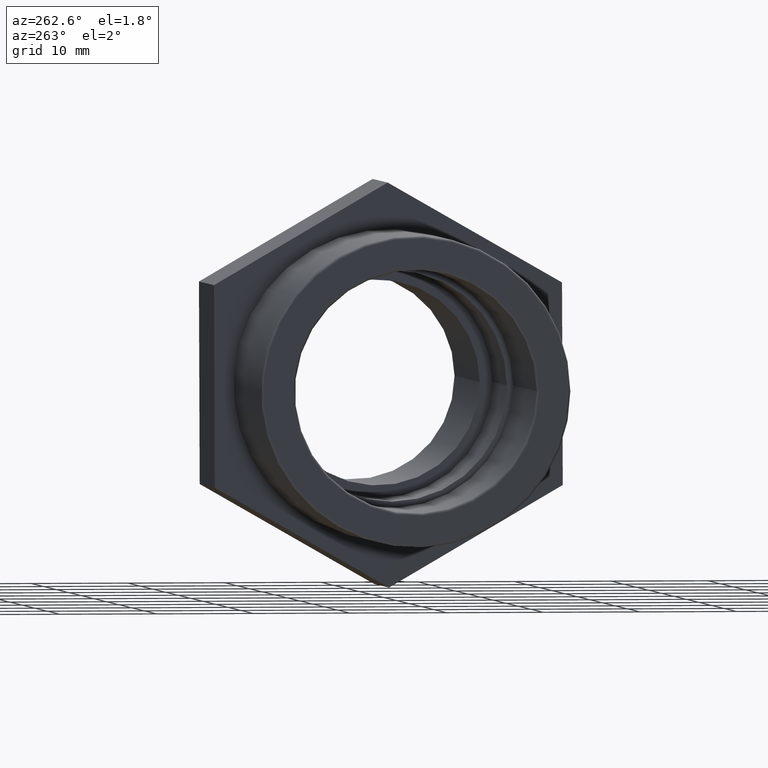
[diagram: clean part render]
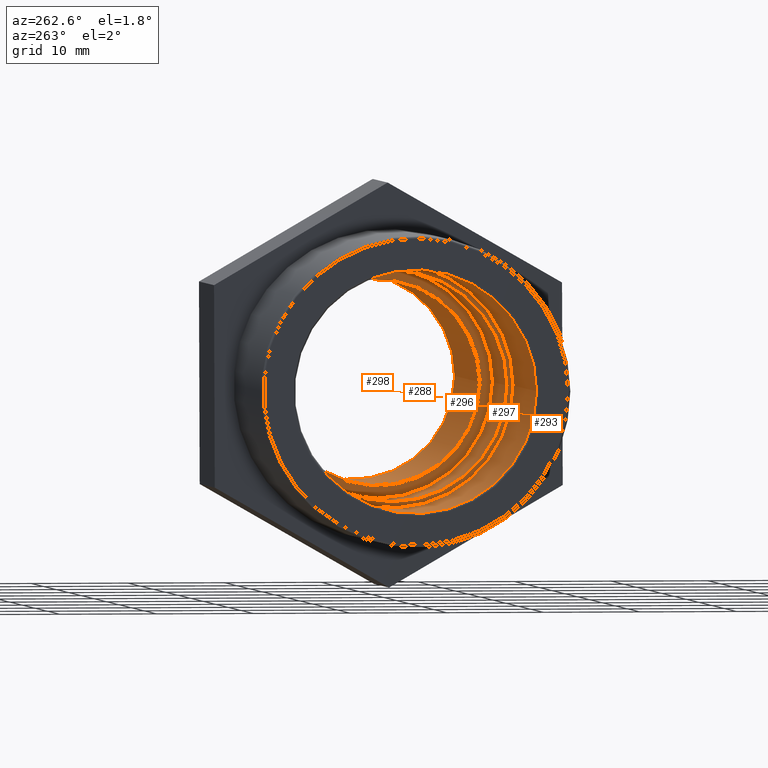
[diagram: same view with one multi-face feature highlighted, each face labeled with its STEP entity id]
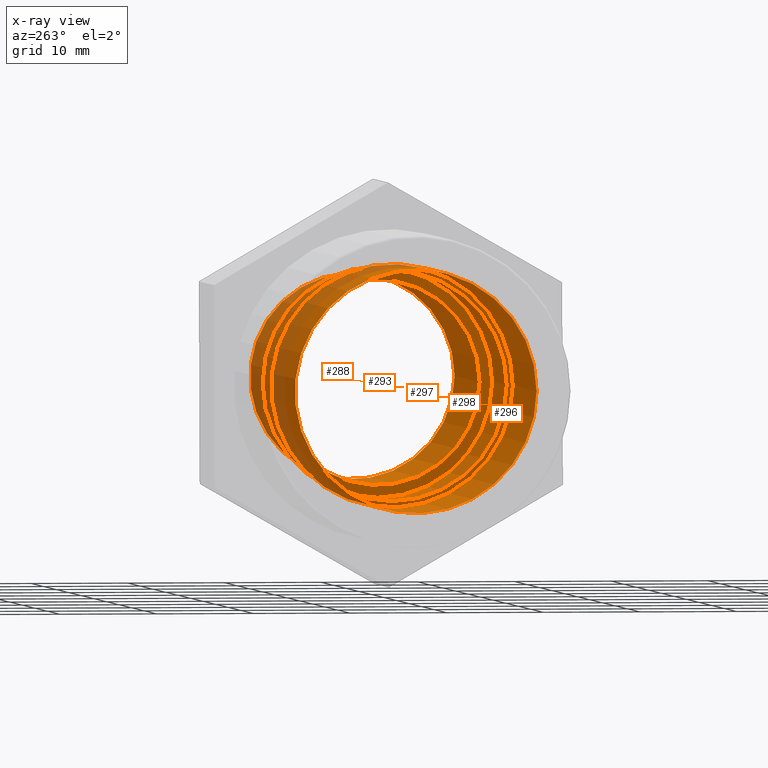
[diagram: x-ray of the same camera — body ghosted, the whole feature saturated]
A machine part, auxiliary view. The highlighted faces form ONE feature: a stepped (counterbored) hole: 3 coaxial cylindrical walls of radii 10.5764 -> 11.875 -> 12.5 mm joined by 2 annular planar shoulder face(s). The faces share edges in the B-rep.
The next image is the same camera in x-ray: the body ghosted and the whole hole feature saturated, so the bore chain is visible through the body.
Their STEP definitions:
[1] entity #293 (Cylinder):
#17=CYLINDRICAL_SURFACE('',#325,12.5);
#27=FACE_BOUND('',#95,.T.);
#42=CIRCLE('',#322,12.5);
#44=CIRCLE('',#326,12.5);
#66=FACE_OUTER_BOUND('',#94,.T.);
#94=EDGE_LOOP('',(#242));
#95=EDGE_LOOP('',(#243));
#165=VERTEX_POINT('',#485);
#167=VERTEX_POINT('',#491);
#197=EDGE_CURVE('',#165,#165,#42,.T.);
#199=EDGE_CURVE('',#167,#167,#44,.T.);
#242=ORIENTED_EDGE('',*,*,#199,.F.);
#243=ORIENTED_EDGE('',*,*,#197,.F.);
#293=ADVANCED_FACE('',(#66,#27),#17,.F.);
#322=AXIS2_PLACEMENT_3D('',#486,#396,#397);
#325=AXIS2_PLACEMENT_3D('',#490,#402,#403);
#326=AXIS2_PLACEMENT_3D('',#492,#404,#405);
#396=DIRECTION('center_axis',(1.,6.73555739531044E-16,0.));
#397=DIRECTION('ref_axis',(-6.74460487459783E-16,1.,6.12323399573677E-17));
#402=DIRECTION('center_axis',(-1.,-6.73555739531044E-16,0.));
#403=DIRECTION('ref_axis',(7.105427357601E-16,-1.,0.));
#404=DIRECTION('center_axis',(-1.,-6.73555739531044E-16,0.));
#405=DIRECTION('ref_axis',(0.,0.,1.));
#485=CARTESIAN_POINT('',(-25.25,-12.5,-2.29621274840129E-15));
#486=CARTESIAN_POINT('Origin',(-25.25,-1.23230084164202E-14,0.));
#490=CARTESIAN_POINT('Origin',(-16.,-6.09261782575808E-15,0.));
#491=CARTESIAN_POINT('',(-6.5,-12.5,0.));
#492=CARTESIAN_POINT('Origin',(-6.50000000000001,3.06161699786833E-16,0.));
[2] entity #297 (Cylinder):
#19=CYLINDRICAL_SURFACE('',#333,11.875);
#31=FACE_BOUND('',#103,.T.);
#47=CIRCLE('',#332,11.875);
#48=CIRCLE('',#334,11.875);
#70=FACE_OUTER_BOUND('',#102,.T.);
#102=EDGE_LOOP('',(#250));
#103=EDGE_LOOP('',(#251));
#170=VERTEX_POINT('',#500);
#171=VERTEX_POINT('',#503);
#202=EDGE_CURVE('',#170,#170,#47,.T.);
#203=EDGE_CURVE('',#171,#171,#48,.T.);
#250=ORIENTED_EDGE('',*,*,#203,.F.);
#251=ORIENTED_EDGE('',*,*,#202,.T.);
#297=ADVANCED_FACE('',(#70,#31),#19,.F.);
#332=AXIS2_PLACEMENT_3D('',#501,#416,#417);
#333=AXIS2_PLACEMENT_3D('',#502,#418,#419);
#334=AXIS2_PLACEMENT_3D('',#504,#420,#421);
#416=DIRECTION('center_axis',(-1.,-6.73555739531044E-16,0.));
#417=DIRECTION('ref_axis',(0.,0.,1.));
#418=DIRECTION('center_axis',(-1.,-6.73555739531044E-16,0.));
#419=DIRECTION('ref_axis',(7.105427357601E-16,-1.,0.));
#420=DIRECTION('center_axis',(-1.,-6.73555739531044E-16,0.));
#421=DIRECTION('ref_axis',(0.,0.,1.));
#500=CARTESIAN_POINT('',(-6.5,-11.875,0.));
#501=CARTESIAN_POINT('Origin',(-6.50000000000001,3.06161699786833E-16,0.));
#502=CARTESIAN_POINT('Origin',(-0.699999999999996,4.21278498906689E-15,
0.));
#503=CARTESIAN_POINT('',(5.10000000000002,-11.875,0.));
#504=CARTESIAN_POINT('Origin',(5.10000000000001,8.11940827834696E-15,0.));
[3] entity #288 (Cylinder):
#15=CYLINDRICAL_SURFACE('',#314,10.5764);
#22=FACE_BOUND('',#85,.T.);
#35=CIRCLE('',#310,10.5764);
#38=CIRCLE('',#315,10.5764);
#61=FACE_OUTER_BOUND('',#84,.T.);
#84=EDGE_LOOP('',(#232));
#85=EDGE_LOOP('',(#233));
#158=VERTEX_POINT('',#466);
#161=VERTEX_POINT('',#474);
#190=EDGE_CURVE('',#158,#158,#35,.T.);
#193=EDGE_CURVE('',#161,#161,#38,.T.);
#232=ORIENTED_EDGE('',*,*,#193,.T.);
#233=ORIENTED_EDGE('',*,*,#190,.F.);
#288=ADVANCED_FACE('',(#61,#22),#15,.F.);
#310=AXIS2_PLACEMENT_3D('',#467,#372,#373);
#314=AXIS2_PLACEMENT_3D('',#473,#380,#381);
#315=AXIS2_PLACEMENT_3D('',#475,#382,#383);
#372=DIRECTION('center_axis',(-1.,-6.73555739531044E-16,0.));
#373=DIRECTION('ref_axis',(-6.72475157095505E-16,1.,6.12323399573677E-17));
#380=DIRECTION('center_axis',(-1.,-6.73555739531044E-16,0.));
#381=DIRECTION('ref_axis',(7.105427357601E-16,-1.,0.));
#382=DIRECTION('center_axis',(-1.,-6.73555739531044E-16,0.));
#383=DIRECTION('ref_axis',(0.,0.,1.));
#466=CARTESIAN_POINT('',(25.25,-10.5764,6.47617720325104E-16));
#467=CARTESIAN_POINT('Origin',(25.25,2.16915564298975E-14,0.));
#473=CARTESIAN_POINT('Origin',(15.3,1.49896768215636E-14,0.));
#474=CARTESIAN_POINT('',(5.10000000000002,-10.5764,0.));
#475=CARTESIAN_POINT('Origin',(5.10000000000001,8.11940827834696E-15,0.));
[4] entity #298 (Plane):
#32=FACE_BOUND('',#105,.T.);
#38=CIRCLE('',#315,10.5764);
#48=CIRCLE('',#334,11.875);
#71=FACE_OUTER_BOUND('',#104,.T.);
#104=EDGE_LOOP('',(#252));
#105=EDGE_LOOP('',(#253));
#161=VERTEX_POINT('',#474);
#171=VERTEX_POINT('',#503);
#193=EDGE_CURVE('',#161,#161,#38,.T.);
#203=EDGE_CURVE('',#171,#171,#48,.T.);
#252=ORIENTED_EDGE('',*,*,#203,.T.);
#253=ORIENTED_EDGE('',*,*,#193,.F.);
#277=PLANE('',#335);
#298=ADVANCED_FACE('',(#71,#32),#277,.T.);
#315=AXIS2_PLACEMENT_3D('',#475,#382,#383);
#334=AXIS2_PLACEMENT_3D('',#504,#420,#421);
#335=AXIS2_PLACEMENT_3D('',#505,#422,#423);
#382=DIRECTION('center_axis',(-1.,-6.73555739531044E-16,0.));
#383=DIRECTION('ref_axis',(0.,0.,1.));
#420=DIRECTION('center_axis',(-1.,-6.73555739531044E-16,0.));
#421=DIRECTION('ref_axis',(0.,0.,1.));
#422=DIRECTION('center_axis',(-1.,-6.73555739531044E-16,0.));
#423=DIRECTION('ref_axis',(0.,0.,1.));
#474=CARTESIAN_POINT('',(5.10000000000002,-10.5764,0.));
#475=CARTESIAN_POINT('Origin',(5.10000000000001,8.11940827834696E-15,0.));
#503=CARTESIAN_POINT('',(5.10000000000002,-11.875,0.));
#504=CARTESIAN_POINT('Origin',(5.10000000000001,8.11940827834696E-15,0.));
#505=CARTESIAN_POINT('Origin',(5.10000000000002,-10.5764,0.));
[5] entity #296 (Plane):
#30=FACE_BOUND('',#101,.T.);
#44=CIRCLE('',#326,12.5);
#47=CIRCLE('',#332,11.875);
#69=FACE_OUTER_BOUND('',#100,.T.);
#100=EDGE_LOOP('',(#248));
#101=EDGE_LOOP('',(#249));
#167=VERTEX_POINT('',#491);
#170=VERTEX_POINT('',#500);
#199=EDGE_CURVE('',#167,#167,#44,.T.);
#202=EDGE_CURVE('',#170,#170,#47,.T.);
#248=ORIENTED_EDGE('',*,*,#199,.T.);
#249=ORIENTED_EDGE('',*,*,#202,.F.);
#276=PLANE('',#331);
#296=ADVANCED_FACE('',(#69,#30),#276,.T.);
#326=AXIS2_PLACEMENT_3D('',#492,#404,#405);
#331=AXIS2_PLACEMENT_3D('',#499,#414,#415);
#332=AXIS2_PLACEMENT_3D('',#501,#416,#417);
#404=DIRECTION('center_axis',(-1.,-6.73555739531044E-16,0.));
#405=DIRECTION('ref_axis',(0.,0.,1.));
#414=DIRECTION('center_axis',(-1.,-6.73555739531044E-16,0.));
#415=DIRECTION('ref_axis',(0.,0.,1.));
#416=DIRECTION('center_axis',(-1.,-6.73555739531044E-16,0.));
#417=DIRECTION('ref_axis',(0.,0.,1.));
#491=CARTESIAN_POINT('',(-6.5,-12.5,0.));
#492=CARTESIAN_POINT('Origin',(-6.50000000000001,3.06161699786833E-16,0.));
#499=CARTESIAN_POINT('Origin',(-6.5,-11.875,0.));
#500=CARTESIAN_POINT('',(-6.5,-11.875,0.));
#501=CARTESIAN_POINT('Origin',(-6.50000000000001,3.06161699786833E-16,0.));